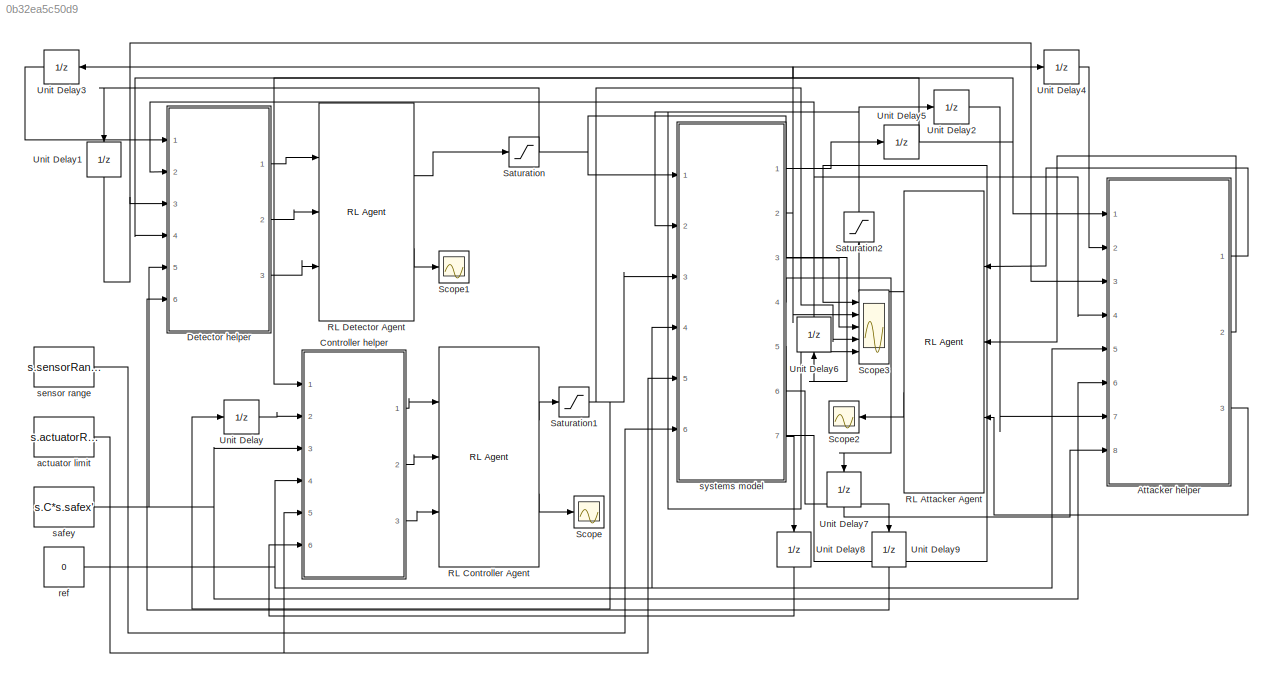
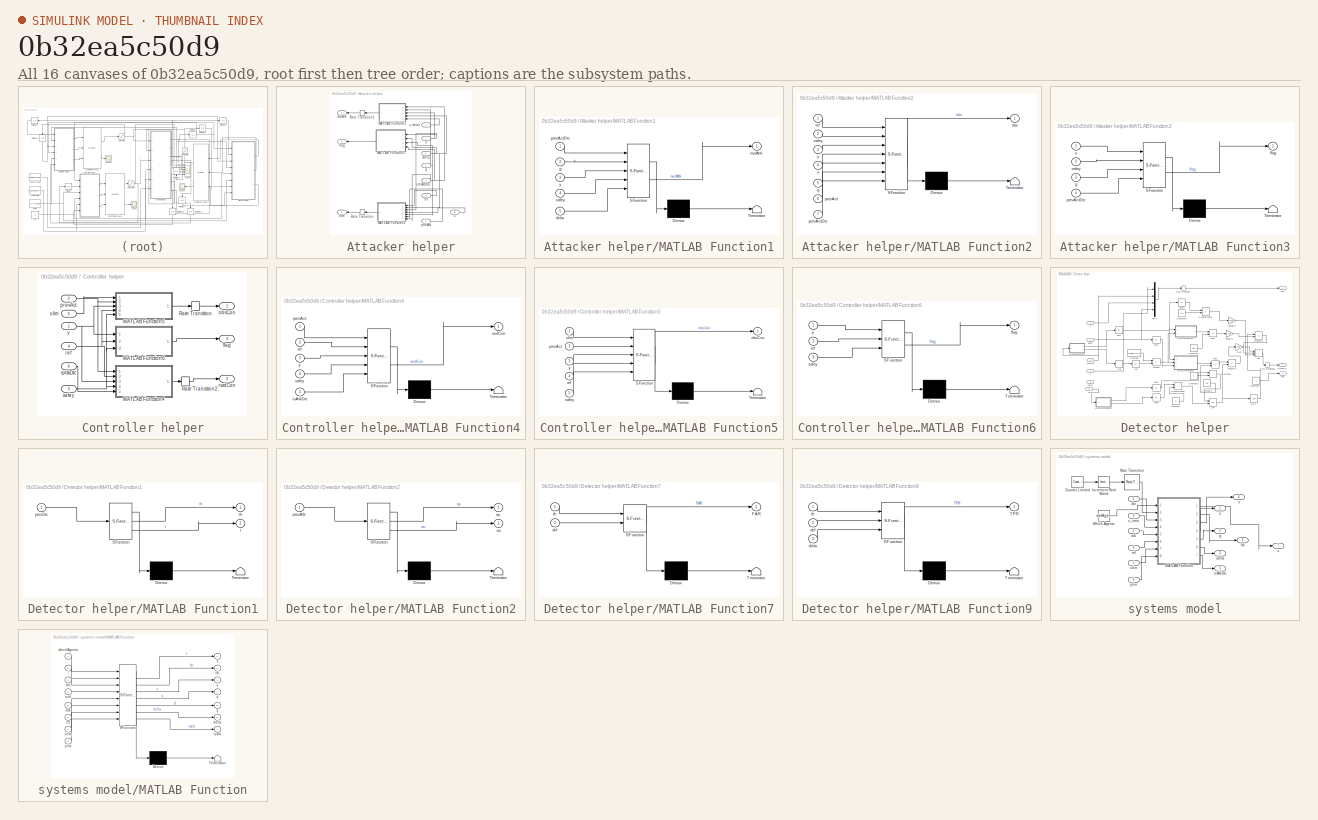
[diagram: thumbnail index - all 16 canvases of the model, root first then tree order]
MODEL slx_0b32ea5c50d9
KIND model
CONFIG AbsTol = auto
CONFIG EnableMultiTasking = off
CONFIG FixedStep = auto
CONFIG MaxStep = auto
CONFIG MinStep = auto
CONFIG RelTol = 1e-3
CONFIG SampleTimeConstraint = Unconstrained
CONFIG SolverName = VariableStepAuto
CONFIG StartTime = 0.0
CONFIG StopTime = 10
WORKSPACE source: external: MAT-File  (data not in archive)
BLOCK [SubSystem] Attacker helper
  Ports = [8, 3]
  RequestExecContextInheritance = off
BLOCK [SubSystem] Attacker helper/MATLAB Function1
  ErrorFcn = Stateflow.Translate.translate
  PermitHierarchicalResolution = ExplicitOnly
  Ports = [5, 1]
  RequestExecContextInheritance = off
  SFBlockType = MATLAB Function
  TreatAsAtomicUnit = on
BLOCK [Demux] Attacker helper/MATLAB Function1/ Demux 
  Outputs = 1
  Ports = [1, 1]
BLOCK [S-Function] Attacker helper/MATLAB Function1/ SFunction 
  EnableBusSupport = on
  FunctionName = sf_sfun
  PortCounts = [5 2]
  Ports = [5, 2]
  SFcnIsStateOwnerBlock = off
  SFunctionDeploymentMode = off
  Tag = Stateflow S-Function 1
BLOCK [Terminator] Attacker helper/MATLAB Function1/ Terminator 
BLOCK [Inport] Attacker helper/MATLAB Function1/delta
  Port = 5
BLOCK [Inport] Attacker helper/MATLAB Function1/g
  Port = 2
BLOCK [Inport] Attacker helper/MATLAB Function1/prevActDtc
BLOCK [Outport] Attacker helper/MATLAB Function1/rwdAtk
BLOCK [Inport] Attacker helper/MATLAB Function1/safey
  Port = 4
BLOCK [Inport] Attacker helper/MATLAB Function1/y
  Port = 3
BLOCK [SubSystem] Attacker helper/MATLAB Function2
  ErrorFcn = Stateflow.Translate.translate
  PermitHierarchicalResolution = ExplicitOnly
  Ports = [7, 1]
  RequestExecContextInheritance = off
  SFBlockType = MATLAB Function
  TreatAsAtomicUnit = on
BLOCK [Demux] Attacker helper/MATLAB Function2/ Demux 
  Outputs = 1
  Ports = [1, 1]
BLOCK [S-Function] Attacker helper/MATLAB Function2/ SFunction 
  EnableBusSupport = on
  FunctionName = sf_sfun
  PortCounts = [7 2]
  Ports = [7, 2]
  SFcnIsStateOwnerBlock = off
  SFunctionDeploymentMode = off
  Tag = Stateflow S-Function 3
BLOCK [Terminator] Attacker helper/MATLAB Function2/ Terminator 
BLOCK [Inport] Attacker helper/MATLAB Function2/g
  Port = 5
BLOCK [Outport] Attacker helper/MATLAB Function2/obs
BLOCK [Inport] Attacker helper/MATLAB Function2/prevAct
  Port = 6
BLOCK [Inport] Attacker helper/MATLAB Function2/prevActDtc
  Port = 7
BLOCK [Inport] Attacker helper/MATLAB Function2/ref
BLOCK [Inport] Attacker helper/MATLAB Function2/safey
  Port = 2
BLOCK [Inport] Attacker helper/MATLAB Function2/u
  Port = 4
BLOCK [Inport] Attacker helper/MATLAB Function2/y
  Port = 3
BLOCK [SubSystem] Attacker helper/MATLAB Function3
  ErrorFcn = Stateflow.Translate.translate
  PermitHierarchicalResolution = ExplicitOnly
  Ports = [4, 1]
  RequestExecContextInheritance = off
  SFBlockType = MATLAB Function
  TreatAsAtomicUnit = on
BLOCK [Demux] Attacker helper/MATLAB Function3/ Demux 
  Outputs = 1
  Ports = [1, 1]
BLOCK [S-Function] Attacker helper/MATLAB Function3/ SFunction 
  EnableBusSupport = on
  FunctionName = sf_sfun
  PortCounts = [4 2]
  Ports = [4, 2]
  SFcnIsStateOwnerBlock = off
  SFunctionDeploymentMode = off
  Tag = Stateflow S-Function 4
BLOCK [Terminator] Attacker helper/MATLAB Function3/ Terminator 
BLOCK [Outport] Attacker helper/MATLAB Function3/flag
BLOCK [Inport] Attacker helper/MATLAB Function3/g
  Port = 3
BLOCK [Inport] Attacker helper/MATLAB Function3/prevActDtc
  Port = 4
BLOCK [Inport] Attacker helper/MATLAB Function3/safey
  Port = 2
BLOCK [Inport] Attacker helper/MATLAB Function3/y
BLOCK [RateTransition] Attacker helper/Rate Transition
BLOCK [RateTransition] Attacker helper/Rate Transition1
BLOCK [Outport] Attacker helper/flag
  Port = 3
BLOCK [Inport] Attacker helper/g
  Port = 2
BLOCK [Outport] Attacker helper/obs
BLOCK [Inport] Attacker helper/prevAct
  Port = 7
BLOCK [Inport] Attacker helper/prevActDtc
  Port = 3
BLOCK [Inport] Attacker helper/ref
  Port = 5
BLOCK [Outport] Attacker helper/rwdAtk
  Port = 2
BLOCK [Inport] Attacker helper/safey
  Port = 6
BLOCK [Inport] Attacker helper/u
  Port = 8
BLOCK [Inport] Attacker helper/y
BLOCK [Inport] Attacker helper/z_mean
  Port = 4
BLOCK [SubSystem] Controller helper
  Ports = [6, 3]
  RequestExecContextInheritance = off
BLOCK [SubSystem] Controller helper/MATLAB Function4
  ErrorFcn = Stateflow.Translate.translate
  PermitHierarchicalResolution = ExplicitOnly
  Ports = [5, 1]
  RequestExecContextInheritance = off
  SFBlockType = MATLAB Function
  TreatAsAtomicUnit = on
BLOCK [Demux] Controller helper/MATLAB Function4/ Demux 
  Outputs = 1
  Ports = [1, 1]
BLOCK [S-Function] Controller helper/MATLAB Function4/ SFunction 
  EnableBusSupport = on
  FunctionName = sf_sfun
  PortCounts = [5 2]
  Ports = [5, 2]
  SFcnIsStateOwnerBlock = off
  SFunctionDeploymentMode = off
  Tag = Stateflow S-Function 5
BLOCK [Terminator] Controller helper/MATLAB Function4/ Terminator 
BLOCK [Inport] Controller helper/MATLAB Function4/isAtkDtc
  Port = 5
BLOCK [Inport] Controller helper/MATLAB Function4/prevAct
BLOCK [Inport] Controller helper/MATLAB Function4/ref
  Port = 2
BLOCK [Outport] Controller helper/MATLAB Function4/rwdCon
BLOCK [Inport] Controller helper/MATLAB Function4/safey
  Port = 4
BLOCK [Inport] Controller helper/MATLAB Function4/y
  Port = 3
BLOCK [SubSystem] Controller helper/MATLAB Function5
  ErrorFcn = Stateflow.Translate.translate
  PermitHierarchicalResolution = ExplicitOnly
  Ports = [5, 1]
  RequestExecContextInheritance = off
  SFBlockType = MATLAB Function
  TreatAsAtomicUnit = on
BLOCK [Demux] Controller helper/MATLAB Function5/ Demux 
  Outputs = 1
  Ports = [1, 1]
BLOCK [S-Function] Controller helper/MATLAB Function5/ SFunction 
  EnableBusSupport = on
  FunctionName = sf_sfun
  PortCounts = [5 2]
  Ports = [5, 2]
  SFcnIsStateOwnerBlock = off
  SFunctionDeploymentMode = off
  Tag = Stateflow S-Function 6
BLOCK [Terminator] Controller helper/MATLAB Function5/ Terminator 
BLOCK [Outport] Controller helper/MATLAB Function5/obsCon
BLOCK [Inport] Controller helper/MATLAB Function5/prevAct
  Port = 2
BLOCK [Inport] Controller helper/MATLAB Function5/ref
  Port = 4
BLOCK [Inport] Controller helper/MATLAB Function5/safey
  Port = 5
BLOCK [Inport] Controller helper/MATLAB Function5/ulim
BLOCK [Inport] Controller helper/MATLAB Function5/y
  Port = 3
BLOCK [SubSystem] Controller helper/MATLAB Function6
  ErrorFcn = Stateflow.Translate.translate
  PermitHierarchicalResolution = ExplicitOnly
  Ports = [3, 1]
  RequestExecContextInheritance = off
  SFBlockType = MATLAB Function
  TreatAsAtomicUnit = on
BLOCK [Demux] Controller helper/MATLAB Function6/ Demux 
  Outputs = 1
  Ports = [1, 1]
BLOCK [S-Function] Controller helper/MATLAB Function6/ SFunction 
  EnableBusSupport = on
  FunctionName = sf_sfun
  PortCounts = [3 2]
  Ports = [3, 2]
  SFcnIsStateOwnerBlock = off
  SFunctionDeploymentMode = off
  Tag = Stateflow S-Function 7
BLOCK [Terminator] Controller helper/MATLAB Function6/ Terminator 
BLOCK [Outport] Controller helper/MATLAB Function6/flag
BLOCK [Inport] Controller helper/MATLAB Function6/ref
  Port = 2
BLOCK [Inport] Controller helper/MATLAB Function6/safey
  Port = 3
BLOCK [Inport] Controller helper/MATLAB Function6/y
BLOCK [RateTransition] Controller helper/Rate Transition
BLOCK [RateTransition] Controller helper/Rate Transition2
BLOCK [Outport] Controller helper/flag
  Port = 3
BLOCK [Inport] Controller helper/isAtkDtc
  Port = 6
BLOCK [Outport] Controller helper/obsCon
BLOCK [Inport] Controller helper/prevAct
  Port = 2
BLOCK [Inport] Controller helper/ref
  Port = 4
BLOCK [Outport] Controller helper/rwdCon
  Port = 2
BLOCK [Inport] Controller helper/safey
  Port = 3
BLOCK [Inport] Controller helper/ulim
  Port = 5
BLOCK [Inport] Controller helper/y
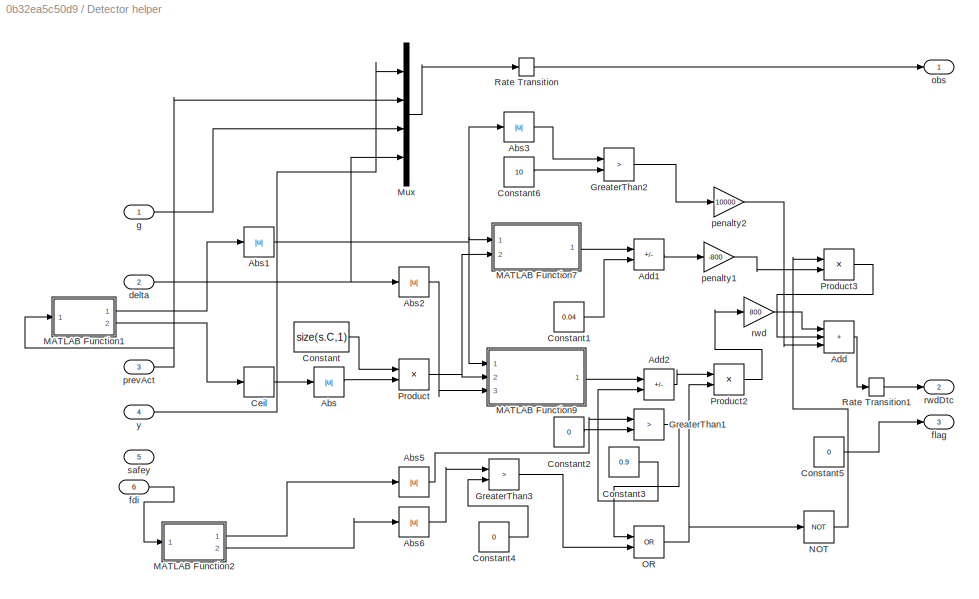
BLOCK [SubSystem] Detector helper
  Ports = [6, 3]
  RequestExecContextInheritance = off
BLOCK [Abs] Detector helper/Abs
  SaturateOnIntegerOverflow = off
BLOCK [Abs] Detector helper/Abs1
  SaturateOnIntegerOverflow = off
BLOCK [Abs] Detector helper/Abs2
  SaturateOnIntegerOverflow = off
BLOCK [Abs] Detector helper/Abs3
  SaturateOnIntegerOverflow = off
BLOCK [Abs] Detector helper/Abs5
  SaturateOnIntegerOverflow = off
BLOCK [Abs] Detector helper/Abs6
  SaturateOnIntegerOverflow = off
BLOCK [Sum] Detector helper/Add
  IconShape = rectangular
  Inputs = +++
  Ports = [3, 1]
BLOCK [Sum] Detector helper/Add1
  IconShape = rectangular
  Inputs = +-
  Ports = [2, 1]
BLOCK [Sum] Detector helper/Add2
  IconShape = rectangular
  Inputs = +-
  Ports = [2, 1]
BLOCK [Rounding] Detector helper/Ceil
  Operator = ceil
BLOCK [Constant] Detector helper/Constant
  SampleTime = Ts
  Value = size(s.C,1)
BLOCK [Constant] Detector helper/Constant1
  SampleTime = Ts
  Value = 0.04
BLOCK [Constant] Detector helper/Constant2
  SampleTime = Ts
  Value = 0
BLOCK [Constant] Detector helper/Constant3
  SampleTime = Ts
  Value = 0.9
BLOCK [Constant] Detector helper/Constant4
  SampleTime = Ts
  Value = 0
BLOCK [Constant] Detector helper/Constant5
  SampleTime = Ts
  Value = 0
BLOCK [Constant] Detector helper/Constant6
  Value = 10
BLOCK [RelationalOperator] Detector helper/GreaterThan1
  InputSameDT = off
  Operator = >
  OutDataTypeStr = boolean
  Ports = [2, 1]
  RndMeth = Simplest
BLOCK [RelationalOperator] Detector helper/GreaterThan2
  InputSameDT = off
  Operator = >
  OutDataTypeStr = boolean
  Ports = [2, 1]
  RndMeth = Simplest
BLOCK [RelationalOperator] Detector helper/GreaterThan3
  InputSameDT = off
  Operator = >
  OutDataTypeStr = boolean
  Ports = [2, 1]
  RndMeth = Simplest
BLOCK [SubSystem] Detector helper/MATLAB Function1
  ErrorFcn = Stateflow.Translate.translate
  PermitHierarchicalResolution = ExplicitOnly
  Ports = [1, 2]
  RequestExecContextInheritance = off
  SFBlockType = MATLAB Function
  TreatAsAtomicUnit = on
BLOCK [Demux] Detector helper/MATLAB Function1/ Demux 
  Outputs = 1
  Ports = [1, 1]
BLOCK [S-Function] Detector helper/MATLAB Function1/ SFunction 
  EnableBusSupport = on
  FunctionName = sf_sfun
  PortCounts = [1 3]
  Ports = [1, 3]
  SFcnIsStateOwnerBlock = off
  SFunctionDeploymentMode = off
  Tag = Stateflow S-Function 9
BLOCK [Terminator] Detector helper/MATLAB Function1/ Terminator 
BLOCK [Outport] Detector helper/MATLAB Function1/l
  Port = 2
BLOCK [Inport] Detector helper/MATLAB Function1/prevDtc
BLOCK [Outport] Detector helper/MATLAB Function1/th
BLOCK [SubSystem] Detector helper/MATLAB Function2
  ErrorFcn = Stateflow.Translate.translate
  PermitHierarchicalResolution = ExplicitOnly
  Ports = [1, 2]
  RequestExecContextInheritance = off
  SFBlockType = MATLAB Function
  TreatAsAtomicUnit = on
BLOCK [Demux] Detector helper/MATLAB Function2/ Demux 
  Outputs = 1
  Ports = [1, 1]
BLOCK [S-Function] Detector helper/MATLAB Function2/ SFunction 
  EnableBusSupport = on
  FunctionName = sf_sfun
  PortCounts = [1 3]
  Ports = [1, 3]
  SFcnIsStateOwnerBlock = off
  SFunctionDeploymentMode = off
  Tag = Stateflow S-Function 11
BLOCK [Terminator] Detector helper/MATLAB Function2/ Terminator 
BLOCK [Outport] Detector helper/MATLAB Function2/au
  Port = 2
BLOCK [Outport] Detector helper/MATLAB Function2/ay
BLOCK [Inport] Detector helper/MATLAB Function2/prevAtk
BLOCK [SubSystem] Detector helper/MATLAB Function7
  ErrorFcn = Stateflow.Translate.translate
  PermitHierarchicalResolution = ExplicitOnly
  Ports = [2, 1]
  RequestExecContextInheritance = off
  SFBlockType = MATLAB Function
  TreatAsAtomicUnit = on
BLOCK [Demux] Detector helper/MATLAB Function7/ Demux 
  Outputs = 1
  Ports = [1, 1]
BLOCK [S-Function] Detector helper/MATLAB Function7/ SFunction 
  EnableBusSupport = on
  FunctionName = sf_sfun
  PortCounts = [2 2]
  Ports = [2, 2]
  SFcnIsStateOwnerBlock = off
  SFunctionDeploymentMode = off
  Tag = Stateflow S-Function 8
BLOCK [Terminator] Detector helper/MATLAB Function7/ Terminator 
BLOCK [Outport] Detector helper/MATLAB Function7/FAR
BLOCK [Inport] Detector helper/MATLAB Function7/dof
  Port = 2
BLOCK [Inport] Detector helper/MATLAB Function7/th
BLOCK [SubSystem] Detector helper/MATLAB Function9
  ErrorFcn = Stateflow.Translate.translate
  PermitHierarchicalResolution = ExplicitOnly
  Ports = [3, 1]
  RequestExecContextInheritance = off
  SFBlockType = MATLAB Function
  TreatAsAtomicUnit = on
BLOCK [Demux] Detector helper/MATLAB Function9/ Demux 
  Outputs = 1
  Ports = [1, 1]
BLOCK [S-Function] Detector helper/MATLAB Function9/ SFunction 
  EnableBusSupport = on
  FunctionName = sf_sfun
  PortCounts = [3 2]
  Ports = [3, 2]
  SFcnIsStateOwnerBlock = off
  SFunctionDeploymentMode = off
  Tag = Stateflow S-Function 10
BLOCK [Terminator] Detector helper/MATLAB Function9/ Terminator 
BLOCK [Outport] Detector helper/MATLAB Function9/TPR
BLOCK [Inport] Detector helper/MATLAB Function9/delta
  Port = 3
BLOCK [Inport] Detector helper/MATLAB Function9/dof
  Port = 2
BLOCK [Inport] Detector helper/MATLAB Function9/th
BLOCK [Mux] Detector helper/Mux
  DisplayOption = bar
  Ports = [4, 1]
BLOCK [Logic] Detector helper/NOT
  AllPortsSameDT = off
  IconShape = distinctive
  Operator = NOT
  OutDataTypeStr = boolean
  Ports = [1, 1]
BLOCK [Logic] Detector helper/OR
  AllPortsSameDT = off
  IconShape = distinctive
  Operator = OR
  OutDataTypeStr = boolean
  Ports = [2, 1]
BLOCK [Product] Detector helper/Product
  Ports = [2, 1]
BLOCK [Product] Detector helper/Product2
  Ports = [2, 1]
BLOCK [Product] Detector helper/Product3
  Ports = [2, 1]
BLOCK [RateTransition] Detector helper/Rate Transition
BLOCK [RateTransition] Detector helper/Rate Transition1
BLOCK [Inport] Detector helper/delta
  Port = 2
BLOCK [Inport] Detector helper/fdi
  Port = 6
BLOCK [Outport] Detector helper/flag
  Port = 3
BLOCK [Inport] Detector helper/g
BLOCK [Outport] Detector helper/obs
BLOCK [Gain] Detector helper/penalty1
  Gain = -800
BLOCK [Gain] Detector helper/penalty2
  Gain = 10000
BLOCK [Inport] Detector helper/prevAct
  Port = 3
BLOCK [Gain] Detector helper/rwd
  Gain = 800
BLOCK [Outport] Detector helper/rwdDtc
  Port = 2
BLOCK [Inport] Detector helper/safey
  Port = 5
BLOCK [Inport] Detector helper/y
  Port = 4
BLOCK [Reference] RL Attacker Agent  REF=rllib/RL Agent
  Ports = [3, 2]
  SourceBlock = rllib/RL Agent
  SourceProductBaseCode = RL
  SourceType = RL Agent
BLOCK [Reference] RL Controller Agent  REF=rllib/RL Agent
  Ports = [3, 2]
  SourceBlock = rllib/RL Agent
  SourceProductBaseCode = RL
  SourceType = RL Agent
BLOCK [Reference] RL Detector Agent  REF=rllib/RL Agent
  Ports = [3, 2]
  SourceBlock = rllib/RL Agent
  SourceProductBaseCode = RL
  SourceType = RL Agent
BLOCK [Saturate] Saturation
  LowerLimit = 1
  UpperLimit = 50
BLOCK [Saturate] Saturation1
  LowerLimit = -s.actuatorRange
  UpperLimit = s.actuatorRange
BLOCK [Saturate] Saturation2
  LowerLimit = -s.sensorRange
  NameLocation = right
  UpperLimit = s.sensorRange
BLOCK [Scope] Scope
  Floating = off
  NumInputPorts = 1
  Ports = [1]
  ScopeSpecificationString = Simulink.scopes.TimeScopeBlockCfg('CurrentConfiguration', extmgr.ConfigurationSet(extmgr.Configuration('Core','General UI',true),extmgr.Configuration('Core','Source UI',true),extmgr.Configuration('Sources','WiredSimulink',true,'DataLoggingVariableName','ScopeData2'),extmgr.Configuration('Visuals','Time Domain',true),extmgr.Configuration('Tools','Plot Navigation',true),extmgr.Configuration('Tools',...<+40ch>
BLOCK [Scope] Scope1
  Floating = off
  NumInputPorts = 1
  Ports = [1]
  ScopeSpecificationString = Simulink.scopes.TimeScopeBlockCfg('CurrentConfiguration', extmgr.ConfigurationSet(extmgr.Configuration('Core','General UI',true),extmgr.Configuration('Core','Source UI',true),extmgr.Configuration('Sources','WiredSimulink',true,'DataLoggingVariableName','ScopeData3'),extmgr.Configuration('Visuals','Time Domain',true,'SerializedDisplays',{struct('MinYLimReal','-6.55','MaxYLimReal','58.95','YLabelRea...<+1364ch>
BLOCK [Scope] Scope2
  Floating = off
  NumInputPorts = 1
  Ports = [1]
  ScopeSpecificationString = Simulink.scopes.TimeScopeBlockCfg('CurrentConfiguration', extmgr.ConfigurationSet(extmgr.Configuration('Core','General UI',true),extmgr.Configuration('Core','Source UI',true),extmgr.Configuration('Sources','WiredSimulink',true),extmgr.Configuration('Visuals','Time Domain',true,'SerializedDisplays',{struct('MinYLimReal','-645.09655','MaxYLimReal','5583.15449','YLabelReal','','MinYLimMag',' 0.00000'...<+1357ch>
BLOCK [Scope] Scope3
  Floating = off
  NumInputPorts = 5
  Ports = [5]
  ScopeSpecificationString = Simulink.scopes.TimeScopeBlockCfg('CurrentConfiguration', extmgr.ConfigurationSet(extmgr.Configuration('Core','General UI',true),extmgr.Configuration('Core','Source UI',true),extmgr.Configuration('Sources','WiredSimulink',true,'DataLoggingVariableName','ScopeData1'),extmgr.Configuration('Visuals','Time Domain',true,'SerializedDisplays',{struct('MinYLimReal','-9.79378','MaxYLimReal','2.28552','YLab...<+1392ch>
BLOCK [UnitDelay] Unit Delay
  HasFrameUpgradeWarning = on
  SampleTime = -1
BLOCK [UnitDelay] Unit Delay1
  HasFrameUpgradeWarning = on
  NameLocation = left
  SampleTime = -1
BLOCK [UnitDelay] Unit Delay2
  HasFrameUpgradeWarning = on
  SampleTime = -1
BLOCK [UnitDelay] Unit Delay3
  HasFrameUpgradeWarning = on
  NameLocation = top
  SampleTime = -1
BLOCK [UnitDelay] Unit Delay4
  HasFrameUpgradeWarning = on
  SampleTime = -1
BLOCK [UnitDelay] Unit Delay5
  HasFrameUpgradeWarning = on
  SampleTime = -1
BLOCK [UnitDelay] Unit Delay6
  HasFrameUpgradeWarning = on
  NameLocation = right
  SampleTime = -1
BLOCK [UnitDelay] Unit Delay7
  HasFrameUpgradeWarning = on
  NameLocation = left
  SampleTime = -1
BLOCK [UnitDelay] Unit Delay8
  HasFrameUpgradeWarning = on
  NameLocation = left
  SampleTime = -1
BLOCK [UnitDelay] Unit Delay9
  HasFrameUpgradeWarning = on
  NameLocation = left
  SampleTime = -1
BLOCK [Constant] actuator limit
  Value = s.actuatorRange
BLOCK [Constant] ref
  Value = 0
BLOCK [Constant] safey
  Value = s.C*s.safex'
BLOCK [Constant] sensor range
  Value = s.sensorRange
BLOCK [SubSystem] systems model
  Ports = [6, 7]
  RequestExecContextInheritance = off
BLOCK [Reference] systems model/Counter Limited  REF=simulink/Sources/Counter
Limited
  Ports = [0, 1]
  SourceBlock = simulink/Sources/Counter\nLimited
  SourceProductBaseCode = SL
  SourceType = Counter Limited
BLOCK [Reference] systems model/Increment Real World  REF=simulink/Additional Math
& Discrete/Additional Math:
Increment - Decrement/Increment
Real World
  Ports = [1, 1]
  SourceBlock = simulink/Additional Math\n& Discrete/Additional Math:\nIncrement - Decrement/Increment\nReal World
  SourceProductBaseCode = SL
  SourceType = Real World Value Increment
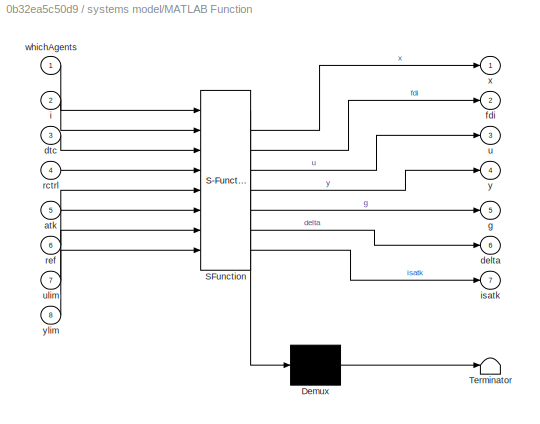
BLOCK [SubSystem] systems model/MATLAB Function
  ErrorFcn = Stateflow.Translate.translate
  PermitHierarchicalResolution = ExplicitOnly
  Ports = [8, 7]
  RequestExecContextInheritance = off
  SFBlockType = MATLAB Function
  TreatAsAtomicUnit = on
BLOCK [Demux] systems model/MATLAB Function/ Demux 
  Outputs = 1
  Ports = [1, 1]
BLOCK [S-Function] systems model/MATLAB Function/ SFunction 
  EnableBusSupport = on
  FunctionName = sf_sfun
  Parameters = s
  PortCounts = [8 8]
  Ports = [8, 8]
  SFcnIsStateOwnerBlock = off
  SFunctionDeploymentMode = off
  Tag = Stateflow S-Function 2
BLOCK [Terminator] systems model/MATLAB Function/ Terminator 
BLOCK [Inport] systems model/MATLAB Function/atk
  Port = 5
BLOCK [Outport] systems model/MATLAB Function/delta
  Port = 6
BLOCK [Inport] systems model/MATLAB Function/dtc
  Port = 3
BLOCK [Outport] systems model/MATLAB Function/fdi
  Port = 2
BLOCK [Outport] systems model/MATLAB Function/g
  Port = 5
BLOCK [Inport] systems model/MATLAB Function/i
  Port = 2
BLOCK [Outport] systems model/MATLAB Function/isatk
  Port = 7
BLOCK [Inport] systems model/MATLAB Function/rctrl
  Port = 4
BLOCK [Inport] systems model/MATLAB Function/ref
  Port = 6
BLOCK [Outport] systems model/MATLAB Function/u
  Port = 3
BLOCK [Inport] systems model/MATLAB Function/ulim
  Port = 7
BLOCK [Inport] systems model/MATLAB Function/whichAgents
BLOCK [Outport] systems model/MATLAB Function/x
BLOCK [Outport] systems model/MATLAB Function/y
  Port = 4
BLOCK [Inport] systems model/MATLAB Function/ylim
  Port = 8
BLOCK [RateTransition] systems model/Rate Transition
BLOCK [Constant] systems model/Which Agents
  SampleTime = Ts
  Value = whichAg_sim
BLOCK [Inport] systems model/atk
  Port = 2
BLOCK [Outport] systems model/delta
  Port = 3
BLOCK [Inport] systems model/dtc
BLOCK [Outport] systems model/fdi
  Port = 6
BLOCK [Outport] systems model/g
  Port = 2
BLOCK [Outport] systems model/isAtkDtc
  Port = 5
BLOCK [Inport] systems model/ref
  Port = 4
BLOCK [Outport] systems model/u
  Port = 4
BLOCK [Inport] systems model/u_new
  Port = 3
BLOCK [Inport] systems model/ulim
  Port = 5
BLOCK [Outport] systems model/x
  Port = 7
BLOCK [Outport] systems model/y
BLOCK [Inport] systems model/ylim
  Port = 6
LINE Attacker helper/MATLAB Function1:1 -> Attacker helper/Rate Transition1:1
LINE Attacker helper/MATLAB Function2:1 -> Attacker helper/Rate Transition:1
LINE Attacker helper/MATLAB Function3:1 -> Attacker helper/flag:1
LINE Attacker helper/Rate Transition1:1 -> Attacker helper/rwdAtk:1
LINE Attacker helper/Rate Transition:1 -> Attacker helper/obs:1
NET Attacker helper/g:1 -> Attacker helper/MATLAB Function1:2, Attacker helper/MATLAB Function2:5, Attacker helper/MATLAB Function3:3
LINE Attacker helper/prevAct:1 -> Attacker helper/MATLAB Function2:6
NET Attacker helper/prevActDtc:1 -> Attacker helper/MATLAB Function1:1, Attacker helper/MATLAB Function2:7, Attacker helper/MATLAB Function3:4
LINE Attacker helper/ref:1 -> Attacker helper/MATLAB Function2:1
NET Attacker helper/safey:1 -> Attacker helper/MATLAB Function1:4, Attacker helper/MATLAB Function2:2, Attacker helper/MATLAB Function3:2
LINE Attacker helper/u:1 -> Attacker helper/MATLAB Function2:4
NET Attacker helper/y:1 -> Attacker helper/MATLAB Function1:3, Attacker helper/MATLAB Function2:3, Attacker helper/MATLAB Function3:1
LINE Attacker helper/z_mean:1 -> Attacker helper/MATLAB Function1:5
LINE Attacker helper:1 -> RL Attacker Agent:1
LINE Attacker helper:2 -> RL Attacker Agent:2
LINE Attacker helper:3 -> RL Attacker Agent:3
LINE Controller helper/MATLAB Function4:1 -> Controller helper/Rate Transition2:1
LINE Controller helper/MATLAB Function5:1 -> Controller helper/Rate Transition:1
LINE Controller helper/MATLAB Function6:1 -> Controller helper/flag:1
LINE Controller helper/Rate Transition2:1 -> Controller helper/rwdCon:1
LINE Controller helper/Rate Transition:1 -> Controller helper/obsCon:1
LINE Controller helper/isAtkDtc:1 -> Controller helper/MATLAB Function4:5
NET Controller helper/prevAct:1 -> Controller helper/MATLAB Function4:1, Controller helper/MATLAB Function5:2
NET Controller helper/ref:1 -> Controller helper/MATLAB Function4:2, Controller helper/MATLAB Function5:4, Controller helper/MATLAB Function6:2
NET Controller helper/safey:1 -> Controller helper/MATLAB Function4:4, Controller helper/MATLAB Function5:5, Controller helper/MATLAB Function6:3
LINE Controller helper/ulim:1 -> Controller helper/MATLAB Function5:1
NET Controller helper/y:1 -> Controller helper/MATLAB Function4:3, Controller helper/MATLAB Function5:3, Controller helper/MATLAB Function6:1
LINE Controller helper:1 -> RL Controller Agent:1
LINE Controller helper:2 -> RL Controller Agent:2
LINE Controller helper:3 -> RL Controller Agent:3
NET Detector helper/Abs1:1 -> Detector helper/Abs3:1, Detector helper/MATLAB Function7:1, Detector helper/MATLAB Function9:1
LINE Detector helper/Abs2:1 -> Detector helper/MATLAB Function9:3
LINE Detector helper/Abs3:1 -> Detector helper/GreaterThan2:1
LINE Detector helper/Abs5:1 -> Detector helper/GreaterThan1:1
LINE Detector helper/Abs6:1 -> Detector helper/GreaterThan3:1
LINE Detector helper/Abs:1 -> Detector helper/Product:2
LINE Detector helper/Add1:1 -> Detector helper/penalty1:1
LINE Detector helper/Add2:1 -> Detector helper/Product2:1
LINE Detector helper/Add:1 -> Detector helper/Rate Transition1:1
LINE Detector helper/Ceil:1 -> Detector helper/Abs:1
LINE Detector helper/Constant1:1 -> Detector helper/Add1:2
LINE Detector helper/Constant2:1 -> Detector helper/GreaterThan1:2
LINE Detector helper/Constant3:1 -> Detector helper/Add2:2
LINE Detector helper/Constant4:1 -> Detector helper/GreaterThan3:2
LINE Detector helper/Constant5:1 -> Detector helper/flag:1
LINE Detector helper/Constant6:1 -> Detector helper/GreaterThan2:2
LINE Detector helper/Constant:1 -> Detector helper/Product:1
LINE Detector helper/GreaterThan1:1 -> Detector helper/OR:1
LINE Detector helper/GreaterThan2:1 -> Detector helper/penalty2:1
LINE Detector helper/GreaterThan3:1 -> Detector helper/OR:2
LINE Detector helper/MATLAB Function1:1 -> Detector helper/Abs1:1
LINE Detector helper/MATLAB Function1:2 -> Detector helper/Ceil:1
LINE Detector helper/MATLAB Function2:1 -> Detector helper/Abs5:1
LINE Detector helper/MATLAB Function2:2 -> Detector helper/Abs6:1
LINE Detector helper/MATLAB Function7:1 -> Detector helper/Add1:1
LINE Detector helper/MATLAB Function9:1 -> Detector helper/Add2:1
LINE Detector helper/Mux:1 -> Detector helper/Rate Transition:1
LINE Detector helper/NOT:1 -> Detector helper/Product3:1
NET Detector helper/OR:1 -> Detector helper/NOT:1, Detector helper/Product2:2
LINE Detector helper/Product2:1 -> Detector helper/rwd:1
LINE Detector helper/Product3:1 -> Detector helper/Add:2
NET Detector helper/Product:1 -> Detector helper/MATLAB Function7:2, Detector helper/MATLAB Function9:2
LINE Detector helper/Rate Transition1:1 -> Detector helper/rwdDtc:1
LINE Detector helper/Rate Transition:1 -> Detector helper/obs:1
NET Detector helper/delta:1 -> Detector helper/Abs2:1, Detector helper/Mux:4
LINE Detector helper/fdi:1 -> Detector helper/MATLAB Function2:1
LINE Detector helper/g:1 -> Detector helper/Mux:3
LINE Detector helper/penalty1:1 -> Detector helper/Product3:2
LINE Detector helper/penalty2:1 -> Detector helper/Add:3
NET Detector helper/prevAct:1 -> Detector helper/MATLAB Function1:1, Detector helper/Mux:2
LINE Detector helper/rwd:1 -> Detector helper/Add:1
LINE Detector helper/y:1 -> Detector helper/Mux:1
LINE Detector helper:1 -> RL Detector Agent:1
LINE Detector helper:2 -> RL Detector Agent:2
LINE Detector helper:3 -> RL Detector Agent:3
LINE RL Attacker Agent:1 -> Saturation2:1
LINE RL Attacker Agent:2 -> Scope2:1
LINE RL Controller Agent:1 -> Saturation1:1
LINE RL Controller Agent:2 -> Scope:1
LINE RL Detector Agent:1 -> Saturation:1
LINE RL Detector Agent:2 -> Scope1:1
NET Saturation1:1 -> Scope3:4, Unit Delay:1, systems model:3
NET Saturation2:1 -> Scope3:5, Unit Delay2:1, systems model:2
NET Saturation:1 -> Scope3:3, Unit Delay1:1, systems model:1
NET Unit Delay1:1 -> Attacker helper:3, Detector helper:3
LINE Unit Delay2:1 -> Attacker helper:7
LINE Unit Delay3:1 -> Detector helper:1
LINE Unit Delay4:1 -> Attacker helper:2
NET Unit Delay5:1 -> Attacker helper:1, Controller helper:1, Detector helper:4
NET Unit Delay6:1 -> Attacker helper:4, Detector helper:2
LINE Unit Delay7:1 -> Attacker helper:8
LINE Unit Delay8:1 -> Controller helper:6
LINE Unit Delay9:1 -> Detector helper:6
LINE Unit Delay:1 -> Controller helper:2
NET actuator limit:1 -> Controller helper:5, systems model:5
NET ref:1 -> Attacker helper:5, Controller helper:4, systems model:4
NET safey:1 -> Attacker helper:6, Controller helper:3, Detector helper:5
LINE sensor range:1 -> systems model:6
LINE systems model/Counter Limited:1 -> systems model/Increment Real World:1
LINE systems model/Increment Real World:1 -> systems model/Rate Transition:1
LINE systems model/MATLAB Function:1 -> systems model/x:1
LINE systems model/MATLAB Function:2 -> systems model/fdi:1
LINE systems model/MATLAB Function:3 -> systems model/u:1
LINE systems model/MATLAB Function:4 -> systems model/y:1
LINE systems model/MATLAB Function:5 -> systems model/g:1
LINE systems model/MATLAB Function:6 -> systems model/delta:1
LINE systems model/MATLAB Function:7 -> systems model/isAtkDtc:1
LINE systems model/Rate Transition:1 -> systems model/MATLAB Function:2
LINE systems model/Which Agents:1 -> systems model/MATLAB Function:1
LINE systems model/atk:1 -> systems model/MATLAB Function:5
LINE systems model/dtc:1 -> systems model/MATLAB Function:3
LINE systems model/ref:1 -> systems model/MATLAB Function:6
LINE systems model/u_new:1 -> systems model/MATLAB Function:4
LINE systems model/ulim:1 -> systems model/MATLAB Function:7
LINE systems model/ylim:1 -> systems model/MATLAB Function:8
LINE systems model:1 -> Unit Delay5:1
NET systems model:2 -> Scope3:2, Unit Delay3:1, Unit Delay4:1
LINE systems model:3 -> Unit Delay6:1
LINE systems model:4 -> Unit Delay7:1
LINE systems model:5 -> Unit Delay8:1
LINE systems model:6 -> Unit Delay9:1
LINE systems model:7 -> Scope3:1
note: NET lines group one-source signal fan-out (src -> all destinations, sorted); 1:1 wires keep LINE
CHART Controller helper/MATLAB Function6 states=1 transitions=1
  STATE_LABEL 'eML_blk_kernel()'
  STATE_LABEL 'SCRIPT:\nfunction flag = stop(y,ref,safey)\nflag= 0;\n% flag = abs((y-ref)/ref) <= 0.25;\n'
CHART Detector helper/MATLAB Function7 states=1 transitions=1
  STATE_LABEL 'eML_blk_kernel()'
  STATE_LABEL "SCRIPT:\nfunction FAR  = calcFAR(th,dof)\n%    format long g;\n   FAR = chi2cdf(th,dof,'upper')\n  \n"
CHART Detector helper/MATLAB Function1 states=1 transitions=1
  STATE_LABEL 'eML_blk_kernel()'
  STATE_LABEL 'SCRIPT:\nfunction [th,l]  = split(prevDtc)\n%    format long g;\n   th = prevDtc(1);\n    l = prevDtc(2);\nend\n\n'
CHART Detector helper/MATLAB Function9 states=1 transitions=1
  STATE_LABEL 'eML_blk_kernel()'
  STATE_LABEL "SCRIPT:\nfunction TPR  = calcTPR(th,dof,delta)\n%    format long g;\n   TPR = ncx2cdf(th,dof,delta,'upper')\nend\n"
CHART Detector helper/MATLAB Function2 states=1 transitions=1
  STATE_LABEL 'eML_blk_kernel()'
  STATE_LABEL 'SCRIPT:\nfunction [ay,au]  = split(prevAtk)\n%    format long g;\n   ay = prevAtk(1);\n    au = prevAtk(2);\nend\n\n'
CHART Attacker helper/MATLAB Function1 states=1 transitions=1
  STATE_LABEL 'eML_blk_kernel()'
  STATE_LABEL "SCRIPT:\nfunction rwdAtk  = rwrdAtk(prevActDtc,g,y,safey,delta)\n%    format long g;\n   th = abs(prevActDtc(1))\n   tau = max(1,ceil(prevActDtc(2,1)))\n   dof = size(y,1)*(tau)\n   FAR = chi2cdf(th,dof,'upper')\n   TPR = ncx2cdf(th,dof,abs(delta),'upper')\n%    rwdAtk = FAR/TPR + 50*(g<th)+ 100*(y-ref)^2;\n%             50*(FAR-0.05)-40*TPR + 50*(g<th)+ 100*(abs(y)-abs(safey))\n% % rwdAtk = 50*(1-FAR) -50*...<+236ch>"
CHART systems model/MATLAB Function states=1 transitions=1
  STATE_LABEL 'eML_blk_kernel()'
  STATE_LABEL 'SCRIPT:\nfunction [x,fdi,u,y,g,delta,isatk] = env(whichAgents,i,dtc,rctrl,atk,ref,ulim,ylim, s)\n% function [y,g,z_mean]= envSys(atk,dtc,new_u,ref, s)\n%% SYS_ENV Summary of this function goes here\n\n%%%%%%%%%%%%%%%%%%%%%%%%%%%=====FDI Attack=========%%%%%%%%%%%%%%%%%%%%%\n%========================== obtained from code ======================%\n% x1_0=-15.0;\n% x2_0=16.6096079397;\n% fdi_u=[ 35.99313719  7...<+3608ch>'
CHART Attacker helper/MATLAB Function2 states=1 transitions=1
  STATE_LABEL 'eML_blk_kernel()'
  STATE_LABEL 'SCRIPT:\nfunction obs = obsAtk(ref,safey,y,u,g,prevAct,prevActDtc)\n%     format long g;\n    ay= prevAct(1,1);\n    au= prevAct(2,1);\n    obs= [ref;y-ay;u-au;g;safey;prevAct;prevActDtc];\n\n'
CHART Attacker helper/MATLAB Function3 states=1 transitions=1
  STATE_LABEL 'eML_blk_kernel()'
  STATE_LABEL 'SCRIPT:\nfunction flag  = stop(y,safey, g, prevActDtc)\n%     format long g;\n    th = abs(prevActDtc(1));\n%     flag = y > safey & g <= th;\nflag=0;'
CHART Controller helper/MATLAB Function4 states=1 transitions=1
  STATE_LABEL 'eML_blk_kernel()'
  STATE_LABEL 'SCRIPT:\nfunction rwdCon  = rwrdCon(prevAct,ref,y,safey,isAtkDtc)\n%     format long g;\n    u=prevAct;\n%     ay=atk(2);\n    %% safer : 0.5* safey\n%     rwdCon = 350*(abs((y-ref)/ref) <= 0.30)-20*(prevAct)^2-100*(abs(y) > safey)-50\nrwdCon = isAtkDtc*(-100*(y-0.3*safey)^2)%-20*u^2'
CHART Controller helper/MATLAB Function5 states=1 transitions=1
  STATE_LABEL 'eML_blk_kernel()'
  STATE_LABEL 'SCRIPT:\nfunction obsCon = obsCon(ulim,prevAct,y,ref,safey)\n   \n    obsCon=[ulim;prevAct;y;ref;safey];\n\n'
CHART  states=0 transitions=0
CHART  states=0 transitions=0
CHART  states=0 transitions=0
CHART  states=0 transitions=0
CHART  states=0 transitions=0
CHART  states=0 transitions=0
CHART  states=0 transitions=0
CHART  states=0 transitions=0
CHART  states=0 transitions=0
CHART  states=0 transitions=0
CHART  states=0 transitions=0
